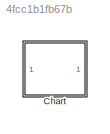
MODEL slx_4fcc1b1fb67b
KIND model
CONFIG AbsTol = auto
CONFIG EnableMultiTasking = off
CONFIG FixedStep = auto
CONFIG MaxStep = auto
CONFIG MinStep = auto
CONFIG RelTol = 1e-3
CONFIG SampleTimeConstraint = Unconstrained
CONFIG Solver = VariableStepAuto
CONFIG SolverName = VariableStepAuto
CONFIG StartTime = 0.0
CONFIG StopTime = 0.1
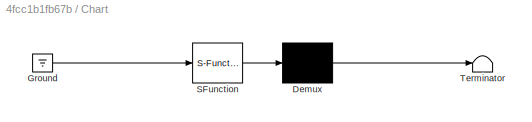
BLOCK [SubSystem] Chart
  ErrorFcn = Stateflow.Translate.translate
  PermitHierarchicalResolution = ExplicitOnly
  Ports = []
  RequestExecContextInheritance = off
  SFBlockType = Chart
  TreatAsAtomicUnit = on
BLOCK [Demux] Chart/ Demux 
  Outputs = 1
  Ports = [1, 1]
BLOCK [Ground] Chart/ Ground 
BLOCK [S-Function] Chart/ SFunction 
  EnableBusSupport = on
  FunctionName = sf_sfun
  PortCounts = [1 1]
  Ports = [1, 1]
  SFcnIsStateOwnerBlock = off
  SFunctionDeploymentMode = off
  Tag = Stateflow S-Function GraphicalFunction2_2018a 3
BLOCK [Terminator] Chart/ Terminator 
CHART Chart states=5 transitions=7
  STATE_LABEL 'i=set(sn)'
  STATE_LABEL '{a(i)=b(i);i = i + 1;f("set")}'
  STATE_LABEL '[i<=sn]'
  STATE_LABEL '{i=1;}'
  STATE_LABEL 'f(s)'
  STATE_LABEL 'SCRIPT:\nfunction f(s)\n  fprintf(s+"\\n");\n'
  STATE_LABEL 'g'
  STATE_LABEL 'SCRIPT:\nfunction g\n  fprintf("%.0f %.0f %.0f %.0f %.0f\\n", a(1), a(2), a(3), a(4), a(5));\n'
  STATE_LABEL 'A\nen: f("en_A");\n data=set(3);'
  STATE_LABEL 'B\nen: f("en_B");g()'
